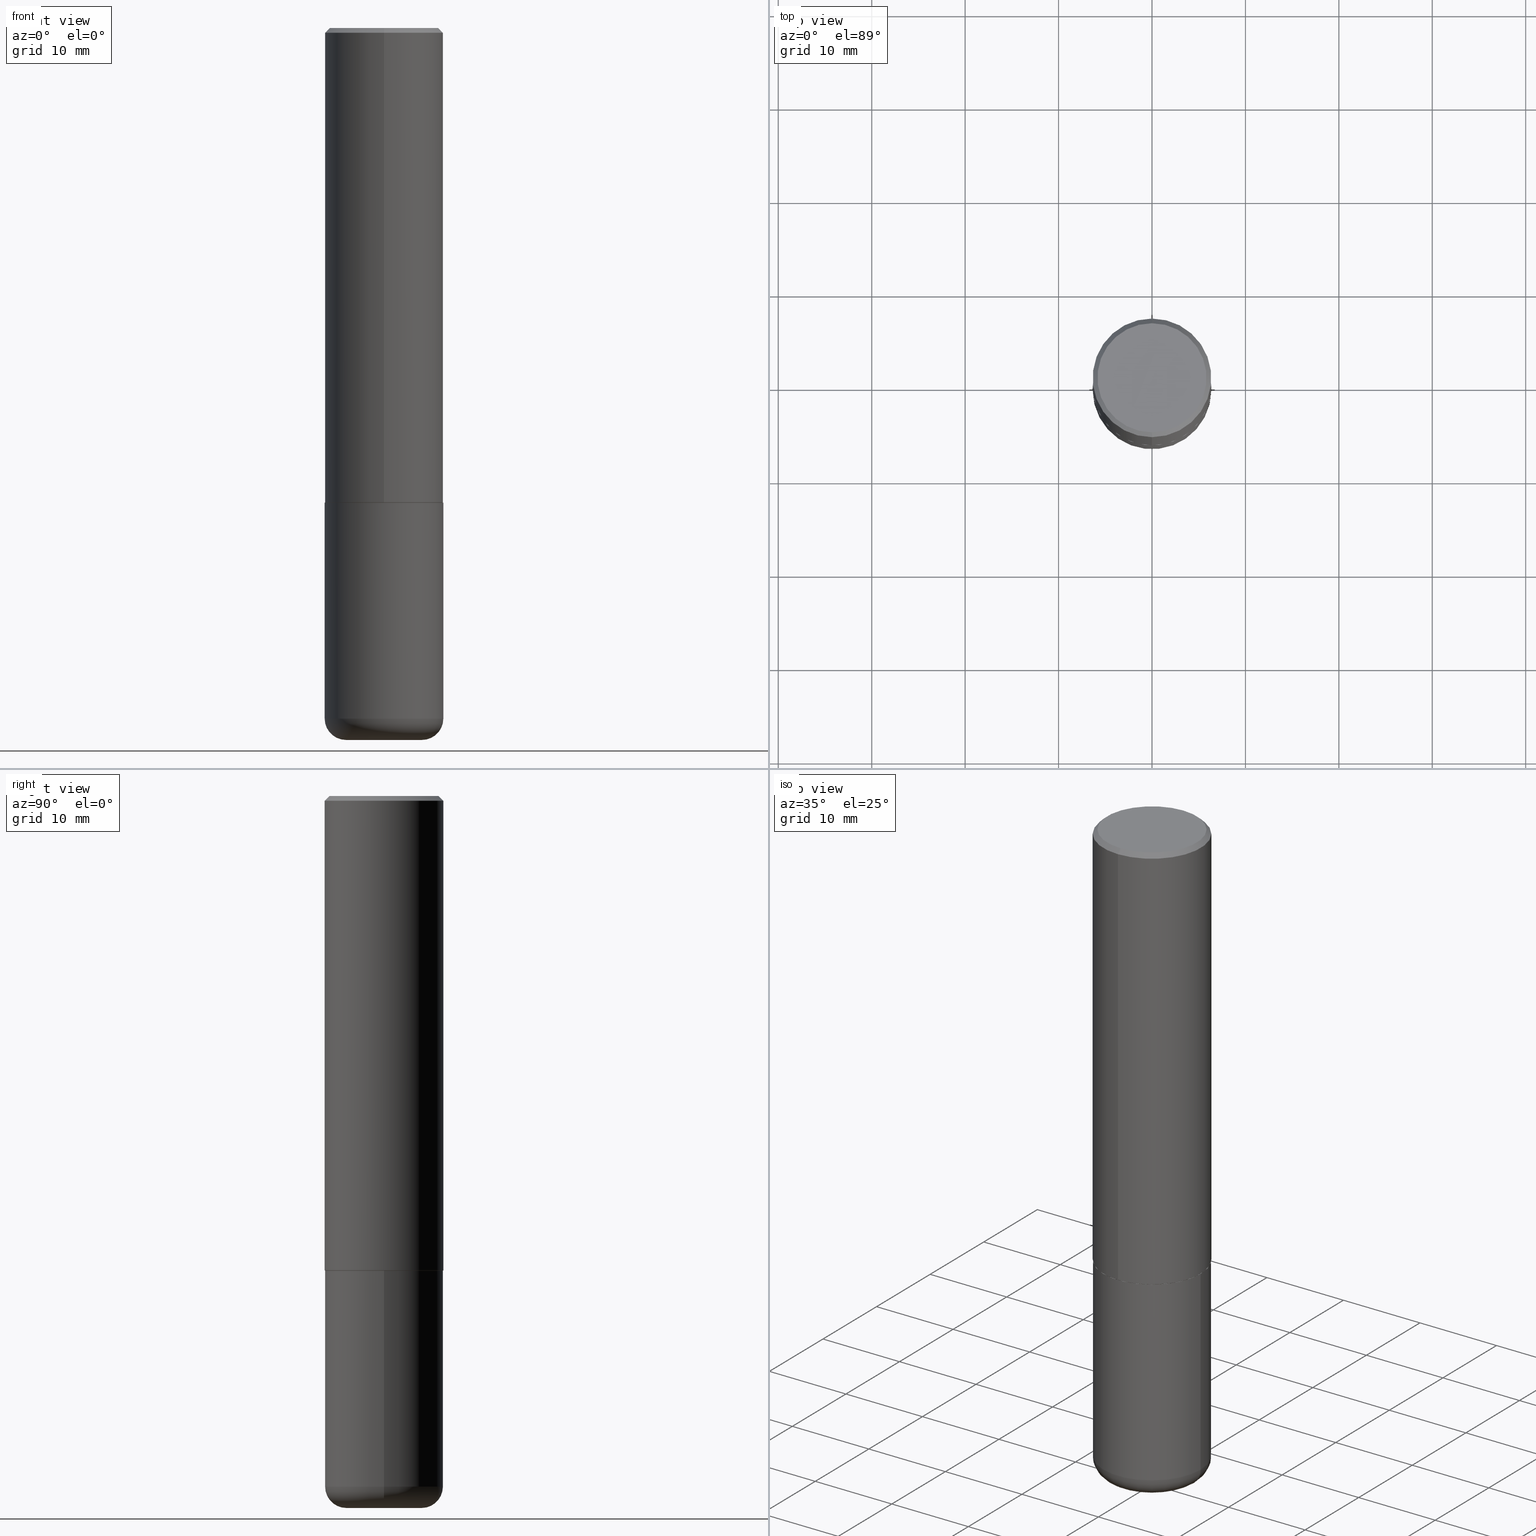
[diagram: canonical four-view strip — front | top / right | iso, engineering-drawing reading convention]
A machine part, canonical four-view strip (front | top / right | iso — engineering-drawing reading convention). The complete STEP part file that produces these views, byte-faithful:
ISO-10303-21;
HEADER;
FILE_DESCRIPTION (( 'STEP AP203' ),
    '1' );
FILE_NAME ('36381.STEP',
    '2024-03-01T16:17:59',
    ( '' ),
    ( '' ),
    'SwSTEP 2.0',
    'SolidWorks 2023',
    '' );
FILE_SCHEMA (( 'CONFIG_CONTROL_DESIGN' ));
ENDSEC;

DATA;
#1 = VECTOR ( 'NONE', #63, 39.37007874015748143 ) ;
#2 = EDGE_LOOP ( 'NONE', ( #319, #122, #33, #108 ) ) ;
#3 = DIRECTION ( 'NONE',  ( 1.000000000000000000, -6.982962677686269077E-15, 0.000000000000000000 ) ) ;
#4 = DIRECTION ( 'NONE',  ( -2.445962445609187395E-29, 3.490774419091693439E-15, 1.000000000000000000 ) ) ;
#5 = DIRECTION ( 'NONE',  ( -6.982962677686266711E-15, -1.000000000000000000, 3.490774419091693834E-15 ) ) ;
#6 = VERTEX_POINT ( 'NONE', #291 ) ;
#7 = CIRCLE ( 'NONE', #208, 0.2500000000000000000 ) ;
#8 = FACE_OUTER_BOUND ( 'NONE', #38, .T. ) ;
#9 = LENGTH_MEASURE_WITH_UNIT ( LENGTH_MEASURE( 0.02539999999999999897 ), #372 );
#10 = ORIENTED_EDGE ( 'NONE', *, *, #209, .T. ) ;
#11 = DIRECTION ( 'NONE',  ( -2.445468806185136877E-29, 3.491481338843145188E-15, 1.000000000000000000 ) ) ;
#12 = APPROVAL_STATUS ( 'not_yet_approved' ) ;
#13 = EDGE_CURVE ( 'NONE', #100, #382, #223, .T. ) ;
#14 = CALENDAR_DATE ( 2024, 1, 3 ) ;
#15 = CARTESIAN_POINT ( 'NONE',  ( 4.891924891218375350E-29, -6.981548838183386879E-15, -2.000000000000000000 ) ) ;
#16 = AXIS2_PLACEMENT_3D ( 'NONE', #136, #199, #65 ) ;
#17 = DIRECTION ( 'NONE',  ( -4.851104656540958753E-15, -0.7071067811865492381, -0.7071067811865457964 ) ) ;
#18 = APPROVAL ( #12, 'UNSPECIFIED' ) ;
#19 = EDGE_LOOP ( 'NONE', ( #86, #112 ) ) ;
#20 = CARTESIAN_POINT ( 'NONE',  ( -0.2500000000000000000, -6.795229847459672846E-15, -2.000000000000000444 ) ) ;
#21 = EDGE_CURVE ( 'NONE', #285, #309, #352, .T. ) ;
#22 = CARTESIAN_POINT ( 'NONE',  ( 1.675911042644703774E-15, 0.2299999999999999822, -7.902351704636221132E-16 ) ) ;
#23 = CIRCLE ( 'NONE', #174, 0.08999999999999992728 ) ;
#24 = CARTESIAN_POINT ( 'NONE',  ( -1.738757706743831162E-15, -0.2490000000000069658, -1.999999999999999112 ) ) ;
#25 = DIRECTION ( 'NONE',  ( 2.445962445609187395E-29, -3.490774419091693439E-15, -1.000000000000000000 ) ) ;
#26 = ORIENTED_EDGE ( 'NONE', *, *, #383, .T. ) ;
#27 = CYLINDRICAL_SURFACE ( 'NONE', #262, 0.2500000000000001110 ) ;
#28 = MANIFOLD_SOLID_BREP ( 'Body-Move/Copy2[1]', #140 ) ;
#29 = DIRECTION ( 'NONE',  ( -2.445468806185136597E-29, 3.491481338843145583E-15, 1.000000000000000000 ) ) ;
#30 = CARTESIAN_POINT ( 'NONE',  ( 4.891924891218388487E-31, -6.981548838183405960E-17, -0.02000000000000005593 ) ) ;
#31 = DIRECTION ( 'NONE',  ( -2.445468806185136597E-29, 3.491481338843145583E-15, 1.000000000000000000 ) ) ;
#32 = CIRCLE ( 'NONE', #104, 0.2500000000000002220 ) ;
#33 = ORIENTED_EDGE ( 'NONE', *, *, #217, .T. ) ;
#34 = DIRECTION ( 'NONE',  ( -2.445962445609187395E-29, 3.490774419091693439E-15, 1.000000000000000000 ) ) ;
#35 = CARTESIAN_POINT ( 'NONE',  ( 4.891924891218388487E-31, -6.981548838183405960E-17, -0.02000000000000005593 ) ) ;
#36 = VERTEX_POINT ( 'NONE', #230 ) ;
#37 = ADVANCED_FACE ( 'NONE', ( #256 ), #329, .T. ) ;
#38 = EDGE_LOOP ( 'NONE', ( #331, #405, #201, #69 ) ) ;
#39 = CALENDAR_DATE ( 2024, 1, 3 ) ;
#40 = ORIENTED_EDGE ( 'NONE', *, *, #105, .F. ) ;
#41 = DATE_AND_TIME ( #39, #418 ) ;
#42 = ADVANCED_FACE ( 'NONE', ( #60 ), #164, .T. ) ;
#43 = APPROVAL_STATUS ( 'not_yet_approved' ) ;
#44 = EDGE_LOOP ( 'NONE', ( #153, #160, #357, #40 ) ) ;
#45 = SECURITY_CLASSIFICATION ( '', '', #124 ) ;
#46 = AXIS2_PLACEMENT_3D ( 'NONE', #231, #4, #326 ) ;
#47 = LINE ( 'NONE', #244, #409 ) ;
#48 = EDGE_LOOP ( 'NONE', ( #377, #297, #247, #98 ) ) ;
#49 = CARTESIAN_POINT ( 'NONE',  ( -1.715124499442882299E-15, -0.2500000000000000555, -0.01999999999999918510 ) ) ;
#50 = CIRCLE ( 'NONE', #299, 0.2500000000000000000 ) ;
#51 = ORIENTED_EDGE ( 'NONE', *, *, #213, .T. ) ;
#52 = PERSON_AND_ORGANIZATION ( #145, #351 ) ;
#53 = CARTESIAN_POINT ( 'NONE',  ( 4.891924891218375350E-29, -6.981548838183386879E-15, -2.000000000000000000 ) ) ;
#54 = EDGE_LOOP ( 'NONE', ( #106, #386 ) ) ;
#55 = ADVANCED_FACE ( 'NONE', ( #166 ), #91, .T. ) ;
#56 = DIRECTION ( 'NONE',  ( 1.000000000000000000, -6.982962677686265133E-15, 4.883557194083112340E-29 ) ) ;
#57 = CARTESIAN_POINT ( 'NONE',  ( 4.891924891218388487E-31, -6.981548838183405960E-17, -0.02000000000000005593 ) ) ;
#58 = PLANE ( 'NONE',  #16 ) ;
#59 = AXIS2_PLACEMENT_3D ( 'NONE', #363, #229, #133 ) ;
#60 = FACE_OUTER_BOUND ( 'NONE', #44, .T. ) ;
#61 = CARTESIAN_POINT ( 'NONE',  ( 1.745740669421566875E-15, 0.2499999999999999167, -0.02000000000000092676 ) ) ;
#62 = EDGE_CURVE ( 'NONE', #309, #189, #370, .T. ) ;
#63 = DIRECTION ( 'NONE',  ( -4.937700262165644559E-15, -0.7071067811867021158, 0.7071067811863929187 ) ) ;
#64 = DIRECTION ( 'NONE',  ( -2.445962445609187395E-29, 3.490774419091693439E-15, 1.000000000000000000 ) ) ;
#65 = DIRECTION ( 'NONE',  ( -1.000000000000000000, 6.982962677686265922E-15, -4.876176775795935793E-29 ) ) ;
#66 = AXIS2_PLACEMENT_3D ( 'NONE', #384, #93, #388 ) ;
#67 = ORIENTED_EDGE ( 'NONE', *, *, #131, .T. ) ;
#68 = CARTESIAN_POINT ( 'NONE',  ( 0.000000000000000000, 0.000000000000000000, 0.000000000000000000 ) ) ;
#69 = ORIENTED_EDGE ( 'NONE', *, *, #232, .F. ) ;
#70 = CARTESIAN_POINT ( 'NONE',  ( 4.891924891218375350E-29, -6.981548838183386879E-15, -2.000000000000000000 ) ) ;
#71 = APPROVAL_ROLE ( '' ) ;
#72 = AXIS2_PLACEMENT_3D ( 'NONE', #81, #117, #186 ) ;
#73 = AXIS2_PLACEMENT_3D ( 'NONE', #97, #195, #321 ) ;
#74 = DIRECTION ( 'NONE',  ( -2.445468806185136597E-29, 3.491481338843145583E-15, 1.000000000000000000 ) ) ;
#75 = PERSON_AND_ORGANIZATION ( #145, #351 ) ;
#76 = ORIENTED_EDGE ( 'NONE', *, *, #110, .T. ) ;
#77 = APPROVAL_DATE_TIME ( #41, #341 ) ;
#78 = AXIS2_PLACEMENT_3D ( 'NONE', #152, #349, #56 ) ;
#79 = EDGE_LOOP ( 'NONE', ( #289, #348, #415, #303 ) ) ;
#80 = COORDINATED_UNIVERSAL_TIME_OFFSET ( 5, 0, .BEHIND. ) ;
#81 = CARTESIAN_POINT ( 'NONE',  ( -3.092417094045251766E-46, 4.413367222556218531E-32, 1.264294592746725022E-17 ) ) ;
#82 = DIRECTION ( 'NONE',  ( -2.445962445609187114E-29, 3.490774419091693439E-15, 1.000000000000000000 ) ) ;
#83 = CC_DESIGN_APPROVAL ( #18, ( #360 ) ) ;
#84 = DIRECTION ( 'NONE',  ( -2.445962445609187395E-29, 3.490774419091693439E-15, 1.000000000000000000 ) ) ;
#85 = AXIS2_PLACEMENT_3D ( 'NONE', #30, #163, #390 ) ;
#86 = ORIENTED_EDGE ( 'NONE', *, *, #143, .T. ) ;
#87 = EDGE_CURVE ( 'NONE', #162, #94, #336, .T. ) ;
#88 = FACE_OUTER_BOUND ( 'NONE', #135, .T. ) ;
#89 = DIRECTION ( 'NONE',  ( -2.445962445609187395E-29, 3.490774419091693439E-15, 1.000000000000000000 ) ) ;
#90 = CARTESIAN_POINT ( 'NONE',  ( -1.715124499442882299E-15, -0.2500000000000000555, -0.01999999999999918510 ) ) ;
#91 = CYLINDRICAL_SURFACE ( 'NONE', #395, 0.2500000000000000000 ) ;
#92 = ORIENTED_EDGE ( 'NONE', *, *, #198, .T. ) ;
#93 = DIRECTION ( 'NONE',  ( 2.438088387897960049E-29, -3.491481338843145188E-15, -1.000000000000000000 ) ) ;
#94 = VERTEX_POINT ( 'NONE', #22 ) ;
#95 = APPLICATION_CONTEXT ( 'configuration controlled 3d designs of mechanical parts and assemblies' ) ;
#96 = DIRECTION ( 'NONE',  ( 6.982962677686265922E-15, 1.000000000000000000, -3.483106191921935554E-15 ) ) ;
#97 = CARTESIAN_POINT ( 'NONE',  ( -3.092417094045251766E-46, 4.413367222556218531E-32, 1.264294592746725022E-17 ) ) ;
#98 = ORIENTED_EDGE ( 'NONE', *, *, #110, .F. ) ;
#99 = DIRECTION ( 'NONE',  ( -2.445962445609187395E-29, 3.490774419091693439E-15, 1.000000000000000000 ) ) ;
#100 = VERTEX_POINT ( 'NONE', #376 ) ;
#101 = CALENDAR_DATE ( 2024, 1, 3 ) ;
#102 = ORIENTED_EDGE ( 'NONE', *, *, #105, .T. ) ;
#103 = DIRECTION ( 'NONE',  ( 1.000000000000000000, -6.982962677686259611E-15, 0.000000000000000000 ) ) ;
#104 = AXIS2_PLACEMENT_3D ( 'NONE', #310, #214, #312 ) ;
#105 = EDGE_CURVE ( 'NONE', #403, #6, #23, .T. ) ;
#106 = ORIENTED_EDGE ( 'NONE', *, *, #402, .F. ) ;
#107 = PERSON_AND_ORGANIZATION ( #145, #351 ) ;
#108 = ORIENTED_EDGE ( 'NONE', *, *, #62, .T. ) ;
#109 = CARTESIAN_POINT ( 'NONE',  ( 0.000000000000000000, 0.000000000000000000, 0.000000000000000000 ) ) ;
#110 = EDGE_CURVE ( 'NONE', #382, #189, #155, .T. ) ;
#111 = ORIENTED_EDGE ( 'NONE', *, *, #249, .F. ) ;
#112 = ORIENTED_EDGE ( 'NONE', *, *, #87, .T. ) ;
#113 = CONICAL_SURFACE ( 'NONE', #187, 0.2489999999999999991, 0.7853981633976704346 ) ;
#114 = ADVANCED_FACE ( 'NONE', ( #410 ), #125, .F. ) ;
#115 = AXIS2_PLACEMENT_3D ( 'NONE', #53, #84, #252 ) ;
#116 = PERSON_AND_ORGANIZATION ( #145, #351 ) ;
#117 = DIRECTION ( 'NONE',  ( -2.445962445609187395E-29, 3.490774419091693439E-15, 1.000000000000000000 ) ) ;
#118 = DATE_AND_TIME ( #216, #204 ) ;
#119 = PERSON_AND_ORGANIZATION_ROLE ( 'creator' ) ;
#120 = CARTESIAN_POINT ( 'NONE',  ( 0.1600000000000000033, -1.127748472446335797E-14, -2.910000000000000586 ) ) ;
#121 = APPROVAL_ROLE ( '' ) ;
#122 = ORIENTED_EDGE ( 'NONE', *, *, #143, .F. ) ;
#123 = CYLINDRICAL_SURFACE ( 'NONE', #316, 0.2500000000000000000 ) ;
#124 = SECURITY_CLASSIFICATION_LEVEL ( 'unclassified' ) ;
#125 = PLANE ( 'NONE',  #151 ) ;
#126 = EDGE_LOOP ( 'NONE', ( #397, #10, #234, #354 ) ) ;
#127 = CC_DESIGN_DATE_AND_TIME_ASSIGNMENT ( #179, #313, ( #149 ) ) ;
#128 = DIRECTION ( 'NONE',  ( -6.982962677686265922E-15, -1.000000000000000000, 3.490774419091693439E-15 ) ) ;
#129 = DIRECTION ( 'NONE',  ( -6.982962677686266711E-15, -1.000000000000000000, 3.490774419091693834E-15 ) ) ;
#130 = CARTESIAN_POINT ( 'NONE',  ( 4.890937612370273754E-29, -6.982962677686291954E-15, -2.000000000000000444 ) ) ;
#131 = EDGE_CURVE ( 'NONE', #162, #189, #150, .T. ) ;
#132 = CC_DESIGN_APPROVAL ( #393, ( #45 ) ) ;
#133 = DIRECTION ( 'NONE',  ( -1.000000000000000000, 7.105427357601006592E-15, 0.000000000000000000 ) ) ;
#134 = CIRCLE ( 'NONE', #59, 0.08999999999999992728 ) ;
#135 = EDGE_LOOP ( 'NONE', ( #92, #375, #111, #345 ) ) ;
#136 = CARTESIAN_POINT ( 'NONE',  ( 4.890937612370273754E-29, -6.982962677686291954E-15, -2.000000000000000444 ) ) ;
#137 = CARTESIAN_POINT ( 'NONE',  ( 7.336406418555409790E-29, -1.047444401652943635E-14, -3.000000000000000444 ) ) ;
#138 = EDGE_CURVE ( 'NONE', #100, #311, #270, .T. ) ;
#139 = DIRECTION ( 'NONE',  ( -6.982962677686265922E-15, -1.000000000000000000, 3.483106191921935554E-15 ) ) ;
#140 = CLOSED_SHELL ( 'NONE', ( #168, #42, #239, #55, #184, #295 ) ) ;
#141 = CIRCLE ( 'NONE', #374, 0.2500000000000002220 ) ;
#142 = DIRECTION ( 'NONE',  ( -2.445962445609187395E-29, 3.490774419091693439E-15, 1.000000000000000000 ) ) ;
#143 = EDGE_CURVE ( 'NONE', #94, #162, #411, .T. ) ;
#144 = DIRECTION ( 'NONE',  ( 1.000000000000000000, -6.982962677686259611E-15, 0.000000000000000000 ) ) ;
#145 = PERSON ( 'UNSPECIFIED', 'UNSPECIFIED', 'UNSPECIFIED', ('UNSPECIFIED'), ('UNSPECIFIED'), ('UNSPECIFIED') ) ;
#146 = VECTOR ( 'NONE', #82, 39.37007874015748143 ) ;
#147 = DIMENSIONAL_EXPONENTS ( 1.000000000000000000, 0.000000000000000000, 0.000000000000000000, 0.000000000000000000, 0.000000000000000000, 0.000000000000000000, 0.000000000000000000 ) ;
#148 = APPROVAL_ROLE ( '' ) ;
#149 = PRODUCT_DEFINITION ( 'UNKNOWN', '', #360, #294 ) ;
#150 = LINE ( 'NONE', #49, #237 ) ;
#151 = AXIS2_PLACEMENT_3D ( 'NONE', #15, #412, #128 ) ;
#152 = CARTESIAN_POINT ( 'NONE',  ( 7.116314225998749245E-29, -1.016021069603355467E-14, -2.910000000000000586 ) ) ;
#153 = ORIENTED_EDGE ( 'NONE', *, *, #402, .T. ) ;
#154 = EDGE_LOOP ( 'NONE', ( #181, #250 ) ) ;
#155 = LINE ( 'NONE', #185, #146 ) ;
#156 = APPROVAL_DATE_TIME ( #322, #393 ) ;
#157 = DIRECTION ( 'NONE',  ( 1.000000000000000000, -6.982962677686266711E-15, 4.876176775795935793E-29 ) ) ;
#158 = VERTEX_POINT ( 'NONE', #20 ) ;
#159 = DIRECTION ( 'NONE',  ( 1.000000000000000000, -6.982962677686266711E-15, 0.000000000000000000 ) ) ;
#160 = ORIENTED_EDGE ( 'NONE', *, *, #276, .T. ) ;
#161 = FACE_OUTER_BOUND ( 'NONE', #2, .T. ) ;
#162 = VERTEX_POINT ( 'NONE', #255 ) ;
#163 = DIRECTION ( 'NONE',  ( 2.445962445609187395E-29, -3.490774419091693439E-15, -1.000000000000000000 ) ) ;
#164 = TOROIDAL_SURFACE ( 'NONE', #215, 0.1600000000000000033, 0.08999999999999994116 ) ;
#165 = AXIS2_PLACEMENT_3D ( 'NONE', #389, #89, #129 ) ;
#166 = FACE_OUTER_BOUND ( 'NONE', #79, .T. ) ;
#167 = EDGE_LOOP ( 'NONE', ( #246, #51, #102, #206 ) ) ;
#168 = ADVANCED_FACE ( 'NONE', ( #88 ), #123, .T. ) ;
#169 = DIRECTION ( 'NONE',  ( 4.937700262164542520E-15, 0.7071067811865443531, -0.7071067811865506814 ) ) ;
#170 = MANIFOLD_SOLID_BREP ( 'Body-Move/Copy2[2]', #210 ) ;
#171 = PERSON_AND_ORGANIZATION_ROLE ( 'classification_officer' ) ;
#172 = DIRECTION ( 'NONE',  ( 5.024295867789177050E-15, 0.7071067811867068897, 0.7071067811863879227 ) ) ;
#173 = VERTEX_POINT ( 'NONE', #378 ) ;
#174 = AXIS2_PLACEMENT_3D ( 'NONE', #120, #283, #380 ) ;
#175 = ORIENTED_EDGE ( 'NONE', *, *, #361, .T. ) ;
#176 = CARTESIAN_POINT ( 'NONE',  ( 7.336406418555409790E-29, -1.047444401652943635E-14, -3.000000000000000444 ) ) ;
#177 = ORIENTED_EDGE ( 'NONE', *, *, #249, .T. ) ;
#178 = PERSON_AND_ORGANIZATION_ROLE ( 'creator' ) ;
#179 = DATE_AND_TIME ( #14, #373 ) ;
#180 = APPROVAL_PERSON_ORGANIZATION ( #107, #18, #148 ) ;
#181 = ORIENTED_EDGE ( 'NONE', *, *, #138, .F. ) ;
#182 = CONICAL_SURFACE ( 'NONE', #85, 0.2500000000000000000, 0.7853981633974472798 ) ;
#183 = COORDINATED_UNIVERSAL_TIME_OFFSET ( 5, 0, .BEHIND. ) ;
#184 = ADVANCED_FACE ( 'NONE', ( #222 ), #353, .T. ) ;
#185 = CARTESIAN_POINT ( 'NONE',  ( -1.745740669421567467E-15, -0.2500000000000001110, 8.726936047729238529E-16 ) ) ;
#186 = DIRECTION ( 'NONE',  ( -6.982962677686265922E-15, -1.000000000000000000, 3.490774419091693045E-15 ) ) ;
#187 = AXIS2_PLACEMENT_3D ( 'NONE', #70, #142, #272 ) ;
#188 = ADVANCED_FACE ( 'NONE', ( #284 ), #346, .T. ) ;
#189 = VERTEX_POINT ( 'NONE', #90 ) ;
#190 = CIRCLE ( 'NONE', #46, 0.2489999999999999991 ) ;
#191 = PRODUCT_RELATED_PRODUCT_CATEGORY ( 'detail', '', ( #342 ) ) ;
#192 = LINE ( 'NONE', #343, #221 ) ;
#193 = ORIENTED_EDGE ( 'NONE', *, *, #21, .F. ) ;
#194 = CARTESIAN_POINT ( 'NONE',  ( 4.891924891218375350E-29, -6.981548838183386879E-15, -2.000000000000000000 ) ) ;
#195 = DIRECTION ( 'NONE',  ( -2.445962445609187395E-29, 3.490774419091693439E-15, 1.000000000000000000 ) ) ;
#196 = CC_DESIGN_SECURITY_CLASSIFICATION ( #45, ( #360 ) ) ;
#197 = CIRCLE ( 'NONE', #317, 0.2500000000000000555 ) ;
#198 = EDGE_CURVE ( 'NONE', #6, #36, #197, .T. ) ;
#199 = DIRECTION ( 'NONE',  ( 2.438088387897960049E-29, -3.491481338843145188E-15, -1.000000000000000000 ) ) ;
#200 = APPLICATION_CONTEXT ( 'configuration controlled 3d designs of mechanical parts and assemblies' ) ;
#201 = ORIENTED_EDGE ( 'NONE', *, *, #13, .T. ) ;
#202 = CARTESIAN_POINT ( 'NONE',  ( 1.772804125721499659E-15, 0.2489999999999930325, -2.000000000000000888 ) ) ;
#203 = CARTESIAN_POINT ( 'NONE',  ( 4.891924891218388487E-31, -6.981548838183405960E-17, -0.02000000000000005593 ) ) ;
#204 = LOCAL_TIME ( 11, 17, 59.00000000000000000, #80 ) ;
#205 = LINE ( 'NONE', #293, #228 ) ;
#206 = ORIENTED_EDGE ( 'NONE', *, *, #253, .F. ) ;
#207 = DIRECTION ( 'NONE',  ( 6.982962677686265922E-15, 1.000000000000000000, -3.490774419091693439E-15 ) ) ;
#208 = AXIS2_PLACEMENT_3D ( 'NONE', #130, #414, #159 ) ;
#209 = EDGE_CURVE ( 'NONE', #311, #285, #192, .T. ) ;
#210 = CLOSED_SHELL ( 'NONE', ( #188, #37, #306, #337, #333, #399, #114, #287 ) ) ;
#211 = CIRCLE ( 'NONE', #248, 0.2500000000000000555 ) ;
#212 = APPLICATION_PROTOCOL_DEFINITION ( 'international standard', 'config_control_design', 1994, #200 ) ;
#213 = EDGE_CURVE ( 'NONE', #173, #403, #242, .T. ) ;
#214 = DIRECTION ( 'NONE',  ( -2.445962445609187395E-29, 3.490774419091693439E-15, 1.000000000000000000 ) ) ;
#215 = AXIS2_PLACEMENT_3D ( 'NONE', #327, #29, #233 ) ;
#216 = CALENDAR_DATE ( 2024, 1, 3 ) ;
#217 = EDGE_CURVE ( 'NONE', #94, #309, #205, .T. ) ;
#218 = PERSON_AND_ORGANIZATION_ROLE ( 'design_supplier' ) ;
#219 = DIRECTION ( 'NONE',  ( -2.445962445609187395E-29, 3.490774419091693439E-15, 1.000000000000000000 ) ) ;
#220 = AXIS2_PLACEMENT_3D ( 'NONE', #109, #307, #245 ) ;
#221 = VECTOR ( 'NONE', #172, 39.37007874015748854 ) ;
#222 = FACE_OUTER_BOUND ( 'NONE', #167, .T. ) ;
#223 = LINE ( 'NONE', #24, #1 ) ;
#224 = CC_DESIGN_PERSON_AND_ORGANIZATION_ASSIGNMENT ( #75, #369, ( #342 ) ) ;
#225 = DIRECTION ( 'NONE',  ( -2.445468806185136597E-29, 3.491481338843145583E-15, 1.000000000000000000 ) ) ;
#226 = CARTESIAN_POINT ( 'NONE',  ( 0.000000000000000000, 0.000000000000000000, 0.000000000000000000 ) ) ;
#227 = CC_DESIGN_APPROVAL ( #341, ( #149 ) ) ;
#228 = VECTOR ( 'NONE', #169, 39.37007874015748143 ) ;
#229 = DIRECTION ( 'NONE',  ( 7.105427357601001859E-15, 1.000000000000000000, -3.491481338843145583E-15 ) ) ;
#230 = CARTESIAN_POINT ( 'NONE',  ( -0.2500000000000000000, -8.383853856633304202E-15, -2.910000000000000586 ) ) ;
#231 = CARTESIAN_POINT ( 'NONE',  ( 4.891924891218375350E-29, -6.981548838183386879E-15, -2.000000000000000000 ) ) ;
#232 = EDGE_CURVE ( 'NONE', #285, #382, #141, .T. ) ;
#233 = DIRECTION ( 'NONE',  ( 1.000000000000000000, -6.982962677686265133E-15, 4.883557194083112340E-29 ) ) ;
#234 = ORIENTED_EDGE ( 'NONE', *, *, #391, .F. ) ;
#235 = FACE_OUTER_BOUND ( 'NONE', #19, .T. ) ;
#236 = FACE_OUTER_BOUND ( 'NONE', #416, .T. ) ;
#237 = VECTOR ( 'NONE', #17, 39.37007874015748143 ) ;
#238 = APPROVAL_DATE_TIME ( #281, #18 ) ;
#239 = ADVANCED_FACE ( 'NONE', ( #236 ), #58, .F. ) ;
#240 = MECHANICAL_CONTEXT ( 'NONE', #95, 'mechanical' ) ;
#241 = AXIS2_PLACEMENT_3D ( 'NONE', #176, #74, #144 ) ;
#242 = CIRCLE ( 'NONE', #323, 0.1600000000000000033 ) ;
#243 = ADVANCED_BREP_SHAPE_REPRESENTATION ( '36381', ( #28, #170, #220 ), #385 ) ;
#244 = CARTESIAN_POINT ( 'NONE',  ( 0.2500000000000000000, -1.745740669421566678E-15, 1.219044193948983948E-29 ) ) ;
#245 = DIRECTION ( 'NONE',  ( 1.000000000000000000, 0.000000000000000000, 0.000000000000000000 ) ) ;
#246 = ORIENTED_EDGE ( 'NONE', *, *, #276, .F. ) ;
#247 = ORIENTED_EDGE ( 'NONE', *, *, #361, .F. ) ;
#248 = AXIS2_PLACEMENT_3D ( 'NONE', #417, #334, #3 ) ;
#249 = EDGE_CURVE ( 'NONE', #260, #158, #7, .T. ) ;
#250 = ORIENTED_EDGE ( 'NONE', *, *, #318, .F. ) ;
#251 = CARTESIAN_POINT ( 'NONE',  ( 0.000000000000000000, 0.000000000000000000, 0.000000000000000000 ) ) ;
#252 = DIRECTION ( 'NONE',  ( -6.982962677686265133E-15, -1.000000000000000000, 3.291383124896702687E-15 ) ) ;
#253 = EDGE_CURVE ( 'NONE', #36, #6, #211, .T. ) ;
#254 = ORIENTED_EDGE ( 'NONE', *, *, #62, .F. ) ;
#255 = CARTESIAN_POINT ( 'NONE',  ( -1.646519519465166968E-15, -0.2299999999999999822, 8.155210623185566599E-16 ) ) ;
#256 = FACE_OUTER_BOUND ( 'NONE', #48, .T. ) ;
#257 = PLANE ( 'NONE',  #404 ) ;
#258 = CARTESIAN_POINT ( 'NONE',  ( 1.776356839400251254E-15, 0.2500000000000001110, -8.726936047729238529E-16 ) ) ;
#259 = CIRCLE ( 'NONE', #290, 0.2500000000000000000 ) ;
#260 = VERTEX_POINT ( 'NONE', #300 ) ;
#261 = APPROVAL_PERSON_ORGANIZATION ( #339, #341, #71 ) ;
#262 = AXIS2_PLACEMENT_3D ( 'NONE', #68, #64, #5 ) ;
#263 = CARTESIAN_POINT ( 'NONE',  ( 1.776356839400276497E-15, 0.2499999999999933109, -1.999000000000000998 ) ) ;
#264 = DIRECTION ( 'NONE',  ( -2.445962445609187395E-29, 3.490774419091693439E-15, 1.000000000000000000 ) ) ;
#265 = CC_DESIGN_PERSON_AND_ORGANIZATION_ASSIGNMENT ( #52, #218, ( #360 ) ) ;
#266 = FACE_OUTER_BOUND ( 'NONE', #54, .T. ) ;
#267 = EDGE_LOOP ( 'NONE', ( #408, #67, #175, #394 ) ) ;
#268 = FACE_OUTER_BOUND ( 'NONE', #267, .T. ) ;
#269 = CARTESIAN_POINT ( 'NONE',  ( -1.745740669421519149E-15, -0.2500000000000072164, -1.998999999999999444 ) ) ;
#270 = CIRCLE ( 'NONE', #115, 0.2489999999999999991 ) ;
#271 = CC_DESIGN_PERSON_AND_ORGANIZATION_ASSIGNMENT ( #315, #178, ( #149 ) ) ;
#272 = DIRECTION ( 'NONE',  ( -6.982962677686265133E-15, -1.000000000000000000, 3.291383124896702687E-15 ) ) ;
#273 =( NAMED_UNIT ( * ) PLANE_ANGLE_UNIT ( ) SI_UNIT ( $, .RADIAN. ) );
#274 = CIRCLE ( 'NONE', #241, 0.1600000000000000033 ) ;
#275 = CARTESIAN_POINT ( 'NONE',  ( 0.1600000000000000033, -1.159171804495923808E-14, -3.000000000000000444 ) ) ;
#276 = EDGE_CURVE ( 'NONE', #173, #36, #134, .T. ) ;
#277 = CONICAL_SURFACE ( 'NONE', #308, 0.2500000000000000000, 0.7853981633974472798 ) ;
#278 = COORDINATED_UNIVERSAL_TIME_OFFSET ( 5, 0, .BEHIND. ) ;
#279 = CC_DESIGN_PERSON_AND_ORGANIZATION_ASSIGNMENT ( #116, #119, ( #360 ) ) ;
#280 = DATE_TIME_ROLE ( 'classification_date' ) ;
#281 = DATE_AND_TIME ( #401, #400 ) ;
#282 = PRODUCT_DEFINITION_SHAPE ( 'NONE', 'NONE',  #149 ) ;
#283 = DIRECTION ( 'NONE',  ( -6.982962677686266711E-15, -1.000000000000000000, 3.491481338843145583E-15 ) ) ;
#284 = FACE_OUTER_BOUND ( 'NONE', #126, .T. ) ;
#285 = VERTEX_POINT ( 'NONE', #263 ) ;
#286 = PERSON_AND_ORGANIZATION ( #145, #351 ) ;
#287 = ADVANCED_FACE ( 'NONE', ( #235 ), #257, .F. ) ;
#288 = CARTESIAN_POINT ( 'NONE',  ( 7.116314225998749245E-29, -1.016021069603355467E-14, -2.910000000000000586 ) ) ;
#289 = ORIENTED_EDGE ( 'NONE', *, *, #367, .F. ) ;
#290 = AXIS2_PLACEMENT_3D ( 'NONE', #396, #225, #350 ) ;
#291 = CARTESIAN_POINT ( 'NONE',  ( 0.2500000000000000000, -1.190595136545512292E-14, -2.910000000000000586 ) ) ;
#292 = COORDINATED_UNIVERSAL_TIME_OFFSET ( 5, 0, .BEHIND. ) ;
#293 = CARTESIAN_POINT ( 'NONE',  ( 1.745740669421566875E-15, 0.2499999999999999167, -0.02000000000000092676 ) ) ;
#294 = DESIGN_CONTEXT ( 'detailed design', #200, 'design' ) ;
#295 = ADVANCED_FACE ( 'NONE', ( #266 ), #355, .T. ) ;
#296 = DIRECTION ( 'NONE',  ( -6.982962677686266711E-15, -1.000000000000000000, 3.278217592397113101E-15 ) ) ;
#297 = ORIENTED_EDGE ( 'NONE', *, *, #21, .T. ) ;
#298 = VECTOR ( 'NONE', #381, 39.37007874015748143 ) ;
#299 = AXIS2_PLACEMENT_3D ( 'NONE', #35, #34, #139 ) ;
#300 = CARTESIAN_POINT ( 'NONE',  ( 0.2500000000000000000, -8.728703347107858632E-15, -2.000000000000000444 ) ) ;
#301 = UNCERTAINTY_MEASURE_WITH_UNIT (LENGTH_MEASURE( 1.000000000000000082E-05 ), #340, 'distance_accuracy_value', 'NONE');
#302 = DIRECTION ( 'NONE',  ( -6.982962677686265922E-15, -1.000000000000000000, 3.483106191921935554E-15 ) ) ;
#303 = ORIENTED_EDGE ( 'NONE', *, *, #383, .F. ) ;
#304 = CARTESIAN_POINT ( 'NONE',  ( 1.606081415867841067E-15, 0.2299999999999999822, -7.965566434273558732E-16 ) ) ;
#305 = DIRECTION ( 'NONE',  ( 2.445962445609187114E-29, -3.490774419091693439E-15, -1.000000000000000000 ) ) ;
#306 = ADVANCED_FACE ( 'NONE', ( #268 ), #277, .T. ) ;
#307 = DIRECTION ( 'NONE',  ( 0.000000000000000000, 0.000000000000000000, 1.000000000000000000 ) ) ;
#308 = AXIS2_PLACEMENT_3D ( 'NONE', #203, #25, #96 ) ;
#309 = VERTEX_POINT ( 'NONE', #61 ) ;
#310 = CARTESIAN_POINT ( 'NONE',  ( 4.889478928772765840E-29, -6.978058063764295922E-15, -1.999000000000000110 ) ) ;
#311 = VERTEX_POINT ( 'NONE', #202 ) ;
#312 = DIRECTION ( 'NONE',  ( -6.982962677686266711E-15, -1.000000000000000000, 3.278217592397113101E-15 ) ) ;
#313 = DATE_TIME_ROLE ( 'creation_date' ) ;
#314 = AXIS2_PLACEMENT_3D ( 'NONE', #57, #264, #302 ) ;
#315 = PERSON_AND_ORGANIZATION ( #145, #351 ) ;
#316 = AXIS2_PLACEMENT_3D ( 'NONE', #251, #344, #157 ) ;
#317 = AXIS2_PLACEMENT_3D ( 'NONE', #288, #379, #347 ) ;
#318 = EDGE_CURVE ( 'NONE', #311, #100, #190, .T. ) ;
#319 = ORIENTED_EDGE ( 'NONE', *, *, #131, .F. ) ;
#320 = DIRECTION ( 'NONE',  ( -6.982962677686265133E-15, -1.000000000000000000, 3.291383124896702687E-15 ) ) ;
#321 = DIRECTION ( 'NONE',  ( -6.982962677686265922E-15, -1.000000000000000000, 3.490774419091693045E-15 ) ) ;
#322 = DATE_AND_TIME ( #101, #330 ) ;
#323 = AXIS2_PLACEMENT_3D ( 'NONE', #137, #324, #103 ) ;
#324 = DIRECTION ( 'NONE',  ( -2.445468806185136597E-29, 3.491481338843145583E-15, 1.000000000000000000 ) ) ;
#325 = DIRECTION ( 'NONE',  ( 1.000000000000000000, -6.982962677686266711E-15, 4.876176775795935793E-29 ) ) ;
#326 = DIRECTION ( 'NONE',  ( -6.982962677686265133E-15, -1.000000000000000000, 3.291383124896702687E-15 ) ) ;
#327 = CARTESIAN_POINT ( 'NONE',  ( 7.116314225998749245E-29, -1.016021069603355467E-14, -2.910000000000000586 ) ) ;
#328 = CARTESIAN_POINT ( 'NONE',  ( 4.889478928772765840E-29, -6.978058063764295922E-15, -1.999000000000000110 ) ) ;
#329 = CYLINDRICAL_SURFACE ( 'NONE', #165, 0.2500000000000001110 ) ;
#330 = LOCAL_TIME ( 11, 17, 59.00000000000000000, #292 ) ;
#331 = ORIENTED_EDGE ( 'NONE', *, *, #209, .F. ) ;
#332 = CARTESIAN_POINT ( 'NONE',  ( -0.2500000000000000000, 1.776356839400250465E-15, -1.229733772563726445E-29 ) ) ;
#333 = ADVANCED_FACE ( 'NONE', ( #358 ), #27, .T. ) ;
#334 = DIRECTION ( 'NONE',  ( -2.445468806185136597E-29, 3.491481338843145583E-15, 1.000000000000000000 ) ) ;
#335 = COORDINATED_UNIVERSAL_TIME_OFFSET ( 5, 0, .BEHIND. ) ;
#336 = CIRCLE ( 'NONE', #73, 0.2299999999999999822 ) ;
#337 = ADVANCED_FACE ( 'NONE', ( #161 ), #182, .T. ) ;
#338 = EDGE_LOOP ( 'NONE', ( #193, #364, #76, #254 ) ) ;
#339 = PERSON_AND_ORGANIZATION ( #145, #351 ) ;
#340 =( CONVERSION_BASED_UNIT ( 'INCH', #9 ) LENGTH_UNIT ( ) NAMED_UNIT ( #147 ) );
#341 = APPROVAL ( #43, 'UNSPECIFIED' ) ;
#342 = PRODUCT ( '36381', '36381', '', ( #240 ) ) ;
#343 = CARTESIAN_POINT ( 'NONE',  ( 1.769251412042698169E-15, 0.2489999999999930325, -2.000000000000000888 ) ) ;
#344 = DIRECTION ( 'NONE',  ( -2.445468806185136597E-29, 3.491481338843145583E-15, 1.000000000000000000 ) ) ;
#345 = ORIENTED_EDGE ( 'NONE', *, *, #413, .F. ) ;
#346 = CONICAL_SURFACE ( 'NONE', #387, 0.2489999999999999991, 0.7853981633976704346 ) ;
#347 = DIRECTION ( 'NONE',  ( 1.000000000000000000, -6.982962677686269077E-15, 0.000000000000000000 ) ) ;
#348 = ORIENTED_EDGE ( 'NONE', *, *, #253, .T. ) ;
#349 = DIRECTION ( 'NONE',  ( -2.445468806185136597E-29, 3.491481338843145583E-15, 1.000000000000000000 ) ) ;
#350 = DIRECTION ( 'NONE',  ( 1.000000000000000000, -6.982962677686266711E-15, 0.000000000000000000 ) ) ;
#351 = ORGANIZATION ( 'UNSPECIFIED', 'UNSPECIFIED', '' ) ;
#352 = LINE ( 'NONE', #258, #298 ) ;
#353 = TOROIDAL_SURFACE ( 'NONE', #78, 0.1600000000000000033, 0.08999999999999994116 ) ;
#354 = ORIENTED_EDGE ( 'NONE', *, *, #13, .F. ) ;
#355 = PLANE ( 'NONE',  #66 ) ;
#356 = SHAPE_DEFINITION_REPRESENTATION ( #282, #243 ) ;
#357 = ORIENTED_EDGE ( 'NONE', *, *, #198, .F. ) ;
#358 = FACE_OUTER_BOUND ( 'NONE', #338, .T. ) ;
#359 = LINE ( 'NONE', #332, #362 ) ;
#360 = PRODUCT_DEFINITION_FORMATION_WITH_SPECIFIED_SOURCE ( 'ANY', '', #342, .NOT_KNOWN. ) ;
#361 = EDGE_CURVE ( 'NONE', #189, #309, #50, .T. ) ;
#362 = VECTOR ( 'NONE', #392, 39.37007874015748143 ) ;
#363 = CARTESIAN_POINT ( 'NONE',  ( -0.1600000000000000033, -9.023342318817394938E-15, -2.910000000000000586 ) ) ;
#364 = ORIENTED_EDGE ( 'NONE', *, *, #232, .T. ) ;
#365 = APPLICATION_PROTOCOL_DEFINITION ( 'international standard', 'config_control_design', 1994, #95 ) ;
#366 = PERSON_AND_ORGANIZATION ( #145, #351 ) ;
#367 = EDGE_CURVE ( 'NONE', #36, #158, #359, .T. ) ;
#368 = APPROVAL_PERSON_ORGANIZATION ( #286, #393, #121 ) ;
#369 = PERSON_AND_ORGANIZATION_ROLE ( 'design_owner' ) ;
#370 = CIRCLE ( 'NONE', #314, 0.2500000000000000000 ) ;
#371 = CC_DESIGN_PERSON_AND_ORGANIZATION_ASSIGNMENT ( #366, #171, ( #45 ) ) ;
#372 =( LENGTH_UNIT ( ) NAMED_UNIT ( * ) SI_UNIT ( $, .METRE. ) );
#373 = LOCAL_TIME ( 11, 17, 59.00000000000000000, #183 ) ;
#374 = AXIS2_PLACEMENT_3D ( 'NONE', #328, #99, #296 ) ;
#375 = ORIENTED_EDGE ( 'NONE', *, *, #367, .T. ) ;
#376 = CARTESIAN_POINT ( 'NONE',  ( -1.738757706743831162E-15, -0.2490000000000069658, -1.999999999999999112 ) ) ;
#377 = ORIENTED_EDGE ( 'NONE', *, *, #391, .T. ) ;
#378 = CARTESIAN_POINT ( 'NONE',  ( -0.1600000000000000033, -8.860714747973290413E-15, -3.000000000000000444 ) ) ;
#379 = DIRECTION ( 'NONE',  ( -2.445468806185136597E-29, 3.491481338843145583E-15, 1.000000000000000000 ) ) ;
#380 = DIRECTION ( 'NONE',  ( 1.000000000000000000, -6.982962677686273810E-15, 0.000000000000000000 ) ) ;
#381 = DIRECTION ( 'NONE',  ( -2.445962445609187114E-29, 3.490774419091693439E-15, 1.000000000000000000 ) ) ;
#382 = VERTEX_POINT ( 'NONE', #269 ) ;
#383 = EDGE_CURVE ( 'NONE', #158, #260, #259, .T. ) ;
#384 = CARTESIAN_POINT ( 'NONE',  ( 7.336406418555409790E-29, -1.047444401652943635E-14, -3.000000000000000444 ) ) ;
#385 =( GEOMETRIC_REPRESENTATION_CONTEXT ( 3 ) GLOBAL_UNCERTAINTY_ASSIGNED_CONTEXT ( ( #301 ) ) GLOBAL_UNIT_ASSIGNED_CONTEXT ( ( #340, #273, #398 ) ) REPRESENTATION_CONTEXT ( 'NONE', 'WORKASPACE' ) );
#386 = ORIENTED_EDGE ( 'NONE', *, *, #213, .F. ) ;
#387 = AXIS2_PLACEMENT_3D ( 'NONE', #194, #219, #320 ) ;
#388 = DIRECTION ( 'NONE',  ( -1.000000000000000000, 6.982962677686265922E-15, -4.876176775795935793E-29 ) ) ;
#389 = CARTESIAN_POINT ( 'NONE',  ( 0.000000000000000000, 0.000000000000000000, 0.000000000000000000 ) ) ;
#390 = DIRECTION ( 'NONE',  ( 6.982962677686265922E-15, 1.000000000000000000, -3.483106191921935554E-15 ) ) ;
#391 = EDGE_CURVE ( 'NONE', #382, #285, #32, .T. ) ;
#392 = DIRECTION ( 'NONE',  ( -2.445468806185136877E-29, 3.491481338843145188E-15, 1.000000000000000000 ) ) ;
#393 = APPROVAL ( #406, 'UNSPECIFIED' ) ;
#394 = ORIENTED_EDGE ( 'NONE', *, *, #217, .F. ) ;
#395 = AXIS2_PLACEMENT_3D ( 'NONE', #226, #31, #325 ) ;
#396 = CARTESIAN_POINT ( 'NONE',  ( 4.890937612370273754E-29, -6.982962677686291954E-15, -2.000000000000000444 ) ) ;
#397 = ORIENTED_EDGE ( 'NONE', *, *, #138, .T. ) ;
#398 =( NAMED_UNIT ( * ) SI_UNIT ( $, .STERADIAN. ) SOLID_ANGLE_UNIT ( ) );
#399 = ADVANCED_FACE ( 'NONE', ( #8 ), #113, .T. ) ;
#400 = LOCAL_TIME ( 11, 17, 59.00000000000000000, #278 ) ;
#401 = CALENDAR_DATE ( 2024, 1, 3 ) ;
#402 = EDGE_CURVE ( 'NONE', #403, #173, #274, .T. ) ;
#403 = VERTEX_POINT ( 'NONE', #275 ) ;
#404 = AXIS2_PLACEMENT_3D ( 'NONE', #304, #305, #207 ) ;
#405 = ORIENTED_EDGE ( 'NONE', *, *, #318, .T. ) ;
#406 = APPROVAL_STATUS ( 'not_yet_approved' ) ;
#407 = CC_DESIGN_DATE_AND_TIME_ASSIGNMENT ( #118, #280, ( #45 ) ) ;
#408 = ORIENTED_EDGE ( 'NONE', *, *, #87, .F. ) ;
#409 = VECTOR ( 'NONE', #11, 39.37007874015748143 ) ;
#410 = FACE_OUTER_BOUND ( 'NONE', #154, .T. ) ;
#411 = CIRCLE ( 'NONE', #72, 0.2299999999999999822 ) ;
#412 = DIRECTION ( 'NONE',  ( -2.445962445609187114E-29, 3.490774419091693439E-15, 1.000000000000000000 ) ) ;
#413 = EDGE_CURVE ( 'NONE', #6, #260, #47, .T. ) ;
#414 = DIRECTION ( 'NONE',  ( -2.445468806185136597E-29, 3.491481338843145583E-15, 1.000000000000000000 ) ) ;
#415 = ORIENTED_EDGE ( 'NONE', *, *, #413, .T. ) ;
#416 = EDGE_LOOP ( 'NONE', ( #177, #26 ) ) ;
#417 = CARTESIAN_POINT ( 'NONE',  ( 7.116314225998749245E-29, -1.016021069603355467E-14, -2.910000000000000586 ) ) ;
#418 = LOCAL_TIME ( 11, 17, 59.00000000000000000, #335 ) ;
ENDSEC;
END-ISO-10303-21;
